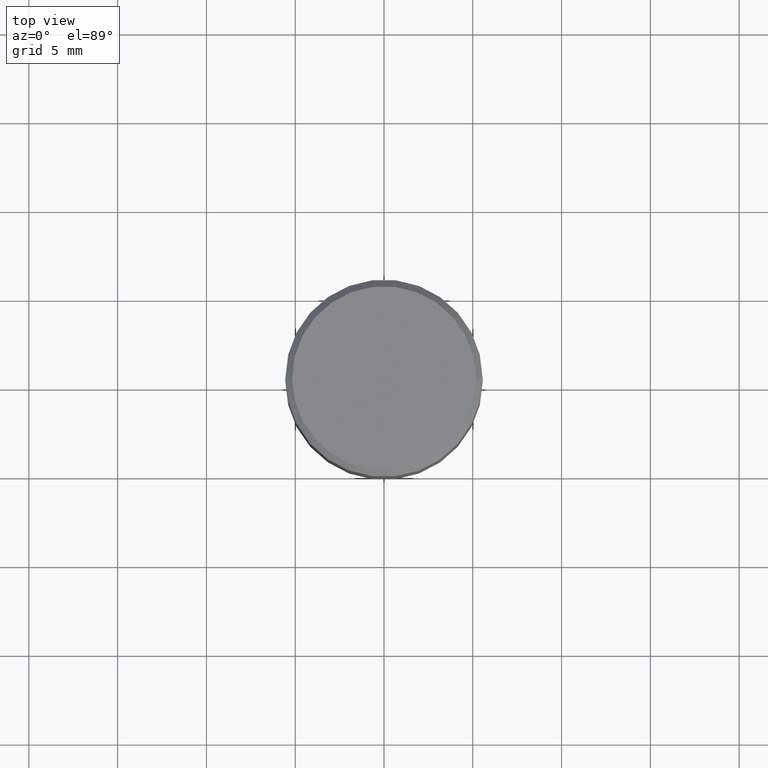
[diagram: clean part render]
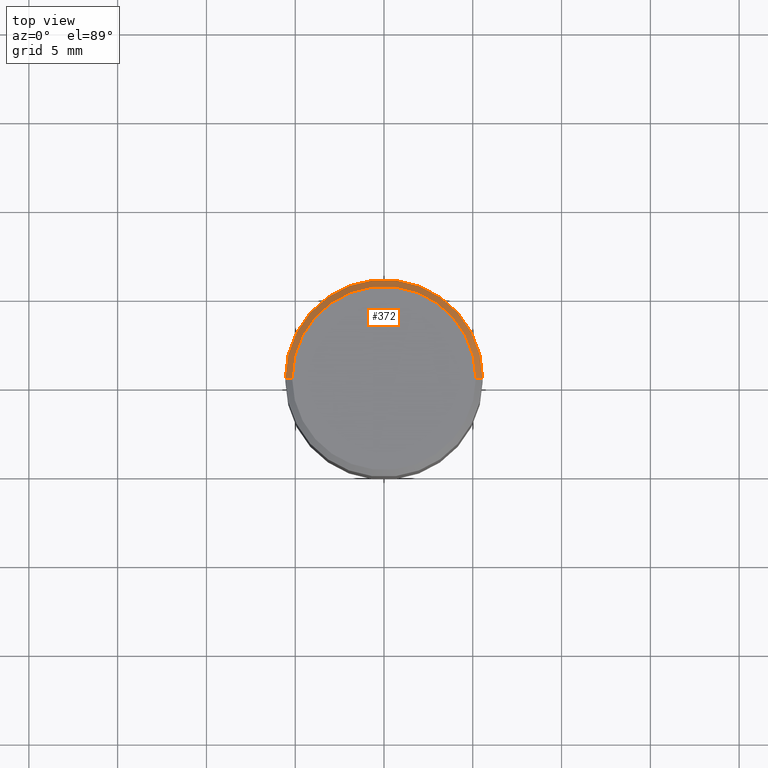
[diagram: same view with one face highlighted and labeled with its STEP entity id]
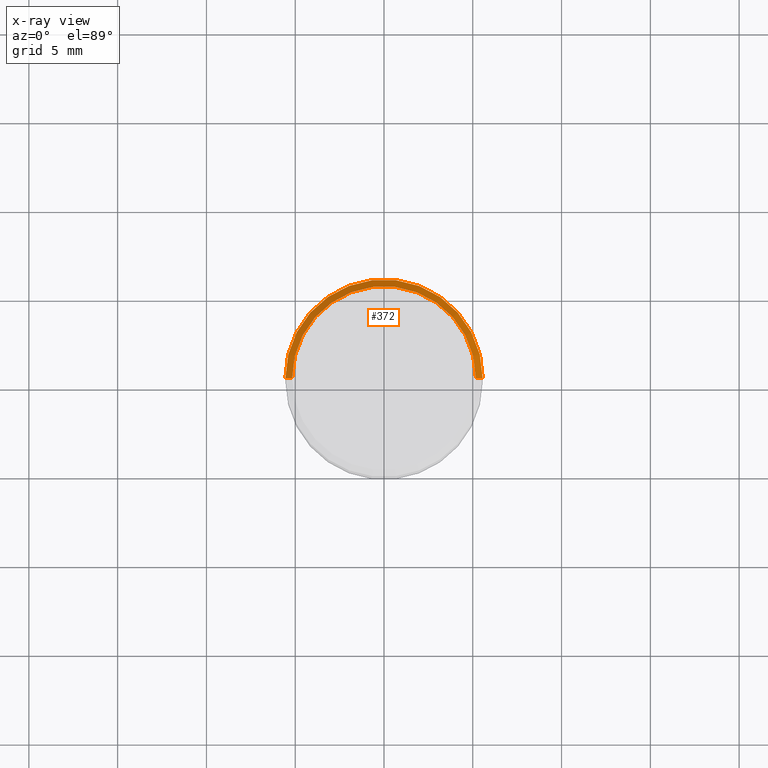
[diagram: x-ray of the same camera — body ghosted, the highlighted face saturated]
A machine part, top view. The second image highlights one B-rep face of the part: STEP entity #372.
The next image is the same camera in x-ray: the body ghosted, the highlighted face saturated — about 0% of this face is hidden behind the body in this view.
In plain terms, the highlighted conical surface has half-angle 45 deg.
Its self-contained STEP definition (entity closure, byte-faithful):
#20 = VERTEX_POINT ( 'NONE', #156 ) ;
#28 = DIRECTION ( 'NONE',  ( 1.000000000000000000, -6.982962677686266711E-15, 4.875065411617369217E-29 ) ) ;
#32 = DIRECTION ( 'NONE',  ( 1.000000000000000000, -6.982962677686266711E-15, 0.000000000000000000 ) ) ;
#43 = CARTESIAN_POINT ( 'NONE',  ( -0.2187500000000000000, 1.475150865661223567E-15, -0.01499999999999999944 ) ) ;
#44 = VECTOR ( 'NONE', #455, 39.37007874015748143 ) ;
#49 = ORIENTED_EDGE ( 'NONE', *, *, #280, .F. ) ;
#50 = CARTESIAN_POINT ( 'NONE',  ( 0.2187500000000000000, -1.553106157095169608E-15, -0.01499999999999999944 ) ) ;
#59 = CIRCLE ( 'NONE', #448, 0.2037499999999999867 ) ;
#63 = DIRECTION ( 'NONE',  ( 2.445468806185136597E-29, -3.491481338843145583E-15, -1.000000000000000000 ) ) ;
#84 = EDGE_LOOP ( 'NONE', ( #49, #165, #157, #159 ) ) ;
#97 = DIRECTION ( 'NONE',  ( -1.000000000000000000, 6.982962677686266711E-15, 0.000000000000000000 ) ) ;
#100 = AXIS2_PLACEMENT_3D ( 'NONE', #329, #281, #32 ) ;
#156 = CARTESIAN_POINT ( 'NONE',  ( 0.2187500000000000000, -1.579895305826517922E-15, -0.01499999999999999944 ) ) ;
#157 = ORIENTED_EDGE ( 'NONE', *, *, #333, .T. ) ;
#159 = ORIENTED_EDGE ( 'NONE', *, *, #216, .F. ) ;
#164 = DIRECTION ( 'NONE',  ( -0.7071067811865452413, 2.468850131082233000E-15, -0.7071067811865497932 ) ) ;
#165 = ORIENTED_EDGE ( 'NONE', *, *, #237, .T. ) ;
#188 = VECTOR ( 'NONE', #164, 39.37007874015748143 ) ;
#216 = EDGE_CURVE ( 'NONE', #416, #302, #453, .T. ) ;
#221 = CIRCLE ( 'NONE', #100, 0.2187500000000000000 ) ;
#228 = AXIS2_PLACEMENT_3D ( 'NONE', #389, #63, #97 ) ;
#237 = EDGE_CURVE ( 'NONE', #450, #20, #315, .T. ) ;
#243 = FACE_OUTER_BOUND ( 'NONE', #84, .T. ) ;
#247 = DIRECTION ( 'NONE',  ( -2.445468806185136597E-29, 3.491481338843145583E-15, 1.000000000000000000 ) ) ;
#274 = CARTESIAN_POINT ( 'NONE',  ( -2.592568563193567003E-45, 3.701500806376036554E-31, 1.060151966214568974E-16 ) ) ;
#280 = EDGE_CURVE ( 'NONE', #450, #416, #59, .T. ) ;
#281 = DIRECTION ( 'NONE',  ( -2.445468806185136597E-29, 3.491481338843145583E-15, 1.000000000000000000 ) ) ;
#302 = VERTEX_POINT ( 'NONE', #357 ) ;
#315 = LINE ( 'NONE', #50, #44 ) ;
#329 = CARTESIAN_POINT ( 'NONE',  ( 3.668203209277705088E-31, -5.237222008264718399E-17, -0.01499999999999999944 ) ) ;
#333 = EDGE_CURVE ( 'NONE', #20, #302, #221, .T. ) ;
#357 = CARTESIAN_POINT ( 'NONE',  ( -0.2187500000000000000, 8.254944693389027239E-16, -0.01499999999999999944 ) ) ;
#372 = ADVANCED_FACE ( 'NONE', ( #243 ), #430, .T. ) ;
#389 = CARTESIAN_POINT ( 'NONE',  ( 3.668203209277705088E-31, -5.237222008264718399E-17, -0.01499999999999999944 ) ) ;
#404 = CARTESIAN_POINT ( 'NONE',  ( 0.2037499999999999867, -1.475466312070559275E-15, 1.060151966214670170E-16 ) ) ;
#416 = VERTEX_POINT ( 'NONE', #425 ) ;
#425 = CARTESIAN_POINT ( 'NONE',  ( -0.2037499999999999867, 1.448964755619900421E-15, 1.060151966214468518E-16 ) ) ;
#430 = CONICAL_SURFACE ( 'NONE', #228, 0.2187500000000000000, 0.7853981633974450594 ) ;
#448 = AXIS2_PLACEMENT_3D ( 'NONE', #274, #247, #28 ) ;
#450 = VERTEX_POINT ( 'NONE', #404 ) ;
#453 = LINE ( 'NONE', #43, #188 ) ;
#455 = DIRECTION ( 'NONE',  ( 0.7071067811865452413, -7.319954787623248157E-15, -0.7071067811865497932 ) ) ;